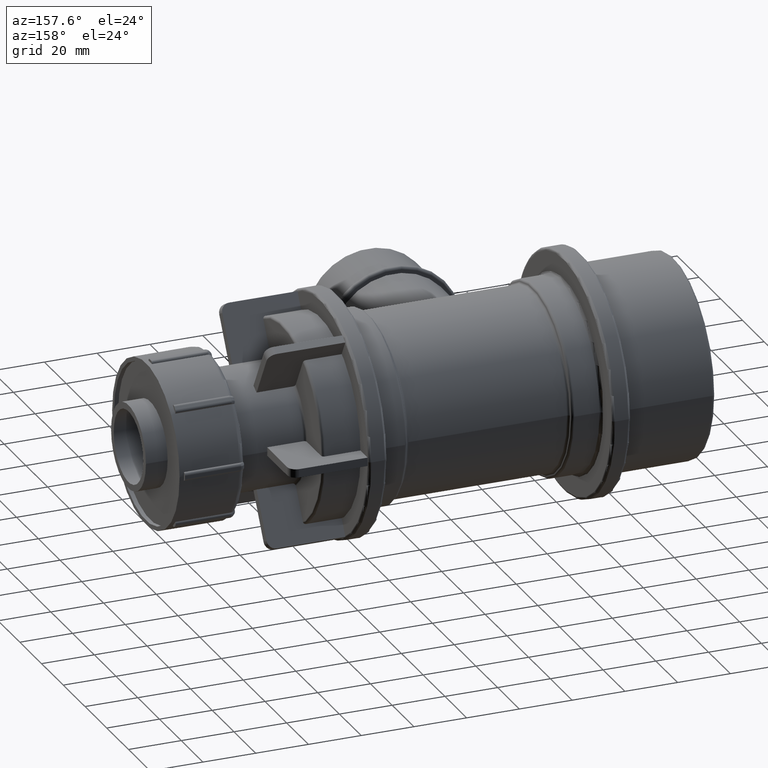
[diagram: clean part render]
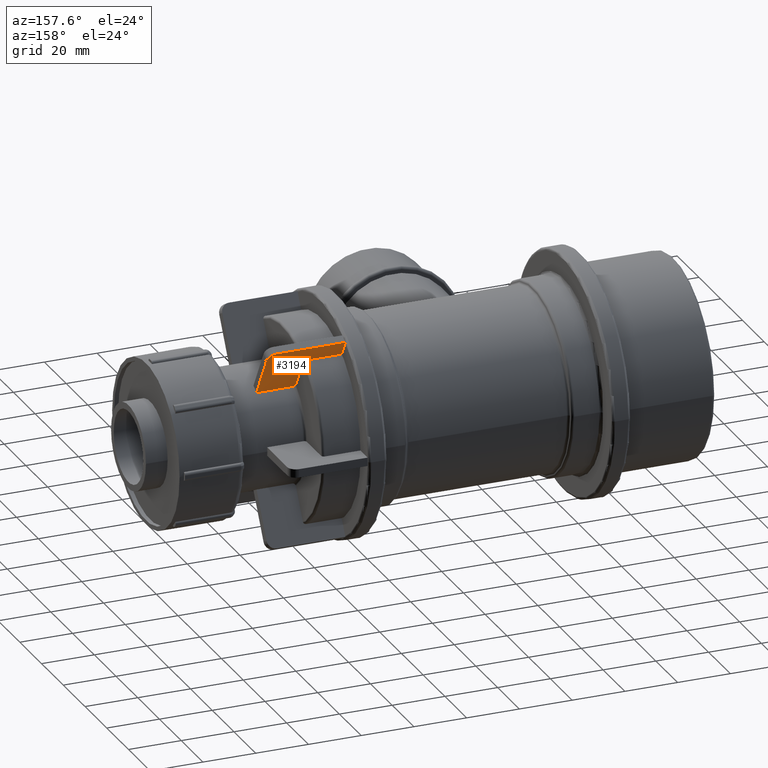
[diagram: same view with one face highlighted and labeled with its STEP entity id]
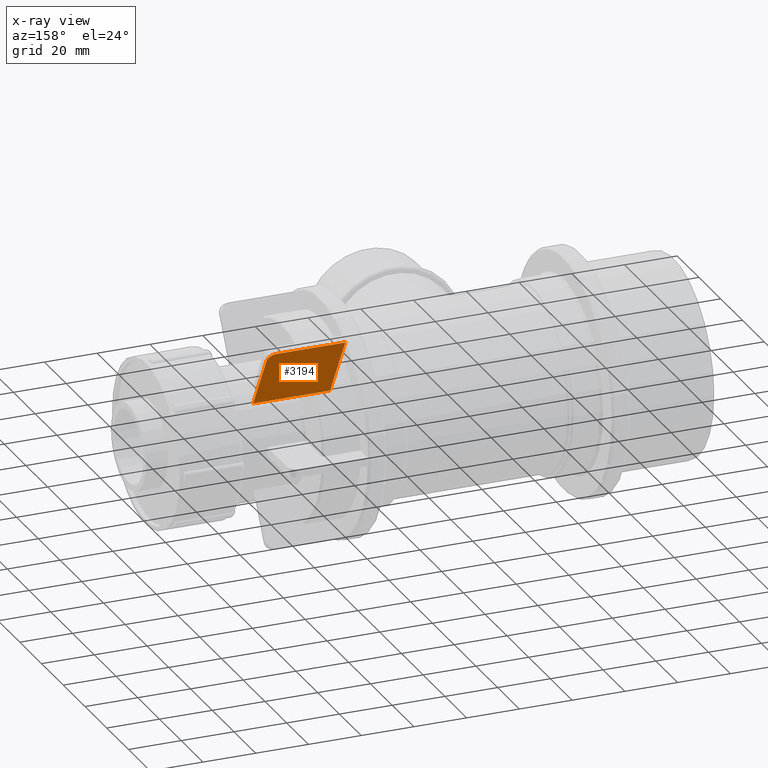
[diagram: x-ray of the same camera — body ghosted, the highlighted face saturated]
A machine part, auxiliary view. The second image highlights one B-rep face of the part: STEP entity #3194.
The next image is the same camera in x-ray: the body ghosted, the highlighted face saturated — about 0% of this face is hidden behind the body in this view.
In plain terms, the highlighted planar face has unit normal (0, 0.866, -0.5).
Its self-contained STEP definition (entity closure, byte-faithful):
#187=LINE('',#6079,#369);
#190=LINE('',#6085,#372);
#191=LINE('',#6087,#373);
#192=LINE('',#6088,#374);
#369=VECTOR('',#4464,26.01);
#372=VECTOR('',#4469,24.8);
#373=VECTOR('',#4470,29.21);
#374=VECTOR('',#4471,28.);
#497=PLANE('',#3574);
#701=CIRCLE('',#3572,3.2);
#987=FACE_OUTER_BOUND('',#1248,.T.);
#1248=EDGE_LOOP('',(#2862,#2863,#2864,#2865,#2866));
#1599=VERTEX_POINT('',#6072);
#1600=VERTEX_POINT('',#6074);
#1601=VERTEX_POINT('',#6078);
#1603=VERTEX_POINT('',#6084);
#1604=VERTEX_POINT('',#6086);
#2025=EDGE_CURVE('',#1599,#1600,#701,.T.);
#2027=EDGE_CURVE('',#1601,#1600,#187,.T.);
#2030=EDGE_CURVE('',#1599,#1603,#190,.T.);
#2031=EDGE_CURVE('',#1603,#1604,#191,.T.);
#2032=EDGE_CURVE('',#1604,#1601,#192,.T.);
#2862=ORIENTED_EDGE('',*,*,#2025,.F.);
#2863=ORIENTED_EDGE('',*,*,#2030,.T.);
#2864=ORIENTED_EDGE('',*,*,#2031,.T.);
#2865=ORIENTED_EDGE('',*,*,#2032,.T.);
#2866=ORIENTED_EDGE('',*,*,#2027,.T.);
#3194=ADVANCED_FACE('',(#987),#497,.T.);
#3572=AXIS2_PLACEMENT_3D('',#6075,#4459,#4460);
#3574=AXIS2_PLACEMENT_3D('',#6083,#4467,#4468);
#4459=DIRECTION('center_axis',(0.,-0.866025403784439,0.5));
#4460=DIRECTION('ref_axis',(0.707106781186547,0.353553390593274,0.612372435695794));
#4464=DIRECTION('',(1.,0.,0.));
#4467=DIRECTION('center_axis',(0.,0.866025403784439,-0.5));
#4468=DIRECTION('ref_axis',(-1.,0.,0.));
#4469=DIRECTION('',(0.,-0.5,-0.866025403784438));
#4470=DIRECTION('',(-1.,-7.60166398237012E-17,-1.31664682395314E-16));
#4471=DIRECTION('',(0.,0.5,0.866025403784438));
#6072=CARTESIAN_POINT('',(78.91,21.7856406460551,34.5338364744051));
#6074=CARTESIAN_POINT('',(75.71,23.3856406460551,37.3051177665153));
#6075=CARTESIAN_POINT('Origin',(75.71,21.7856406460551,34.5338364744051));
#6078=CARTESIAN_POINT('',(49.7,23.3856406460551,37.3051177665153));
#6079=CARTESIAN_POINT('',(78.91,23.3856406460551,37.3051177665153));
#6083=CARTESIAN_POINT('Origin',(64.305,16.3856406460551,25.1807621135332));
#6084=CARTESIAN_POINT('',(78.91,9.38564064605511,13.056406460551));
#6085=CARTESIAN_POINT('',(78.91,12.6356406460551,18.6855715851499));
#6086=CARTESIAN_POINT('',(49.7,9.3856406460551,13.056406460551));
#6087=CARTESIAN_POINT('',(49.7,9.3856406460551,13.056406460551));
#6088=CARTESIAN_POINT('',(49.7,23.3856406460551,37.3051177665153));